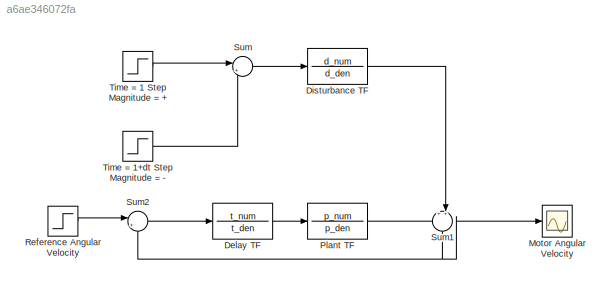
MODEL slx_a6ae346072fa
KIND model
CONFIG AbsTol = auto
CONFIG EnableMultiTasking = off
CONFIG FixedStep = auto
CONFIG MaxStep = auto
CONFIG MinStep = auto
CONFIG RelTol = 1e-3
CONFIG SampleTimeConstraint = Unconstrained
CONFIG Solver = VariableStepAuto
CONFIG SolverName = VariableStepAuto
CONFIG StartTime = 0.0
CONFIG StopTime = 30
BLOCK [TransferFcn] Delay TF
  Denominator = t_den
  Numerator = t_num
BLOCK [TransferFcn] Disturbance TF
  Denominator = d_den
  Numerator = d_num
BLOCK [Scope] Motor Angular Velocity
  Floating = off
  NumInputPorts = 1
  Ports = [1]
  ScopeSpecificationString = Simulink.scopes.TimeScopeBlockCfg('CurrentConfiguration', extmgr.ConfigurationSet(extmgr.Configuration('Core','General UI',true),extmgr.Configuration('Core','Source UI',true),extmgr.Configuration('Sources','WiredSimulink',true,'DataLogging',true,'DataLoggingSaveFormat','Array','DataLoggingVariableName','ScopeData1'),extmgr.Configuration('Visuals','Time Domain',true,'SerializedDisplays',{struct('Mi...<+1443ch>
BLOCK [TransferFcn] Plant TF
  Denominator = p_den
  Numerator = p_num
BLOCK [Step] Reference Angular Velocity
  After = ref
  SampleTime = 0
BLOCK [Sum] Sum
  IconShape = round
  InputSameDT = off
  Inputs = |++
  OutDataTypeStr = Inherit: Inherit via internal rule
  Ports = [2, 1]
  SaturateOnIntegerOverflow = off
BLOCK [Sum] Sum1
  IconShape = round
  InputSameDT = off
  Inputs = ++|
  OutDataTypeStr = Inherit: Inherit via internal rule
  Ports = [2, 1]
  SaturateOnIntegerOverflow = off
BLOCK [Sum] Sum2
  IconShape = round
  InputSameDT = off
  Inputs = |+-
  OutDataTypeStr = Inherit: Inherit via internal rule
  Ports = [2, 1]
  SaturateOnIntegerOverflow = off
BLOCK [Step] Time = 1 Step Magnitude = +
  After = fd
  SampleTime = 0
  Time = time
BLOCK [Step] Time = 1+dt Step Magnitude = -
  After = -fd
  SampleTime = 0
  Time = time+dt
LINE Delay TF:1 -> Plant TF:1
LINE Disturbance TF:1 -> Sum1:2
LINE Plant TF:1 -> Sum1:1
LINE Reference Angular Velocity:1 -> Sum2:1
NET Sum1:1 -> Motor Angular Velocity:1, Sum2:2
LINE Sum2:1 -> Delay TF:1
LINE Sum:1 -> Disturbance TF:1
LINE Time = 1 Step Magnitude = +:1 -> Sum:1
LINE Time = 1+dt Step Magnitude = -:1 -> Sum:2
note: NET lines group one-source signal fan-out (src -> all destinations, sorted); 1:1 wires keep LINE
